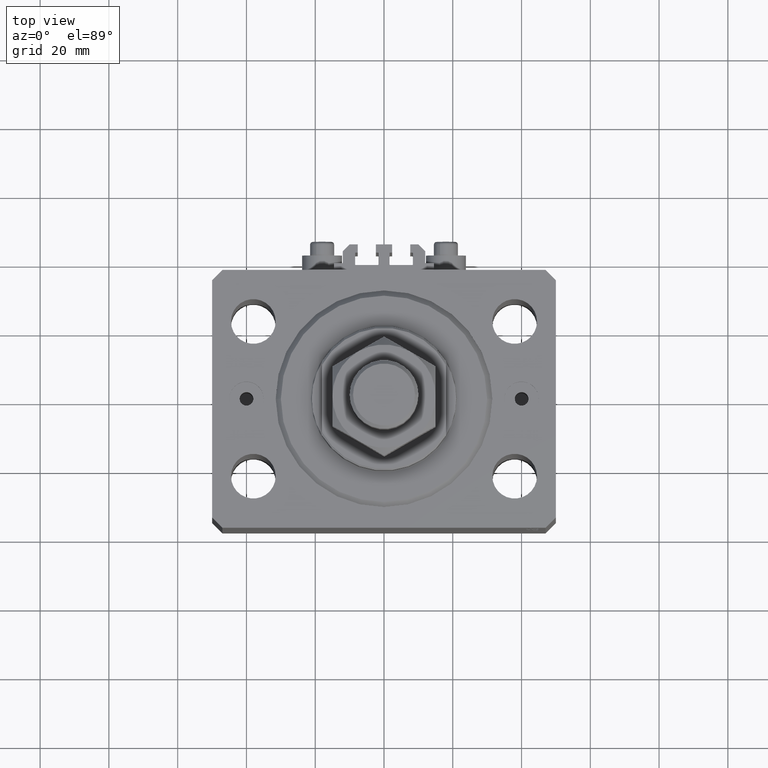
[diagram: clean part render]
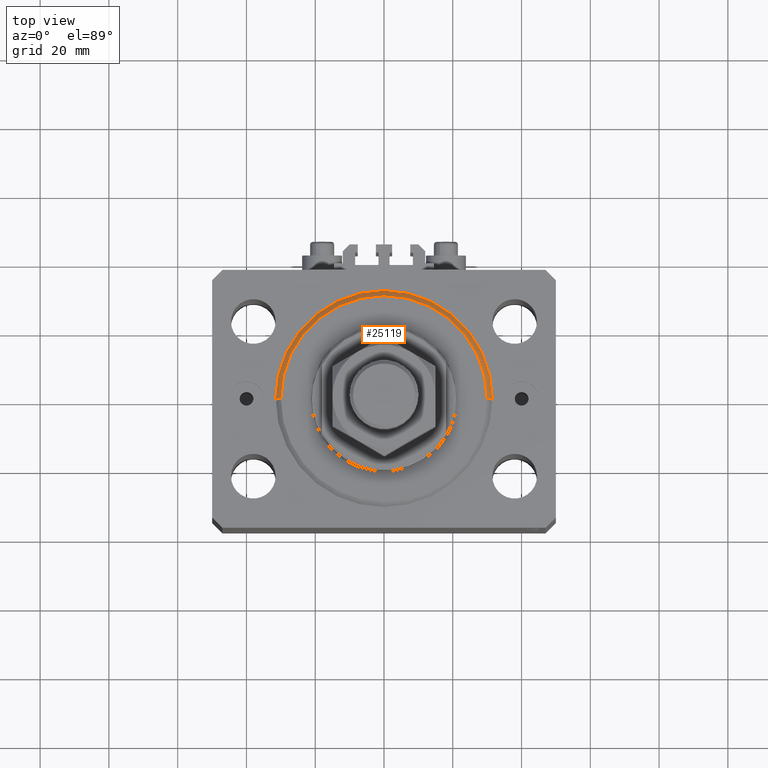
[diagram: same view with one face highlighted and labeled with its STEP entity id]
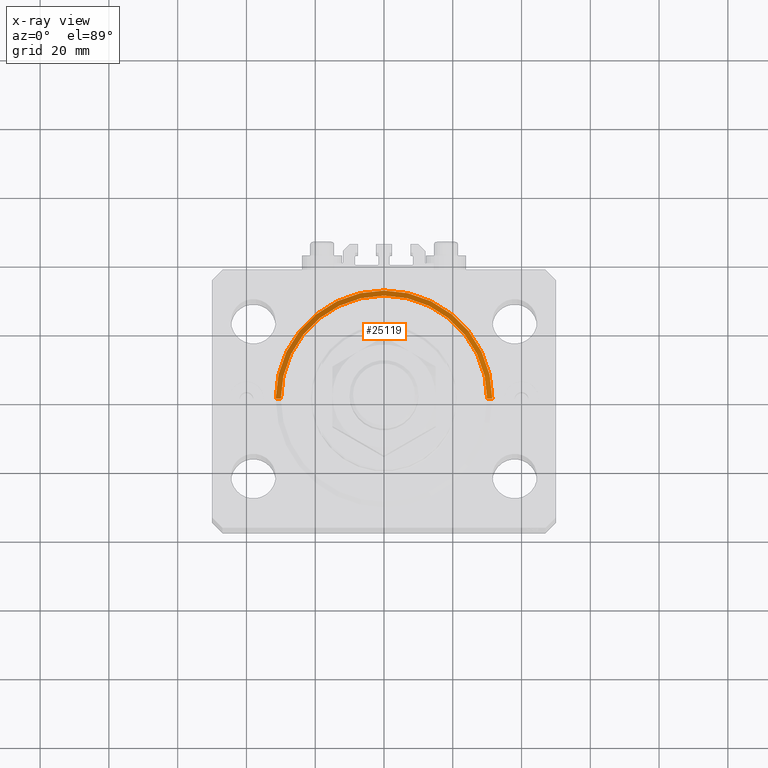
[diagram: x-ray of the same camera — body ghosted, the highlighted face saturated]
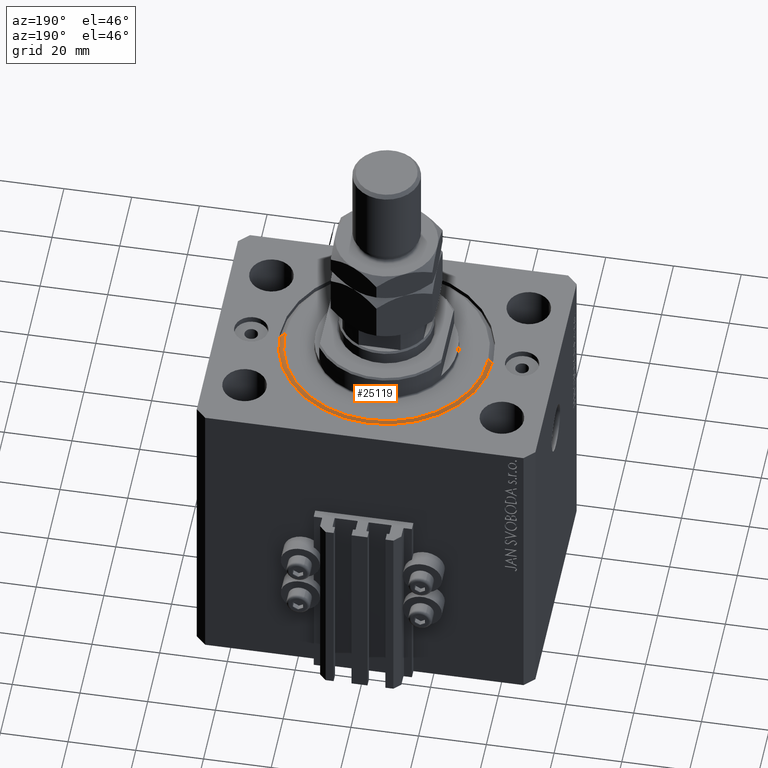
[diagram: same view with one face highlighted and labeled with its STEP entity id]
A machine part, top view. The second image highlights one B-rep face of the part: STEP entity #25119.
The next image is the same camera in x-ray: the body ghosted, the highlighted face saturated — about 0% of this face is hidden behind the body in this view.
A second angle (auxiliary view) of the same face is appended — the face is thin or edge-on in the first view.
In plain terms, the highlighted conical surface has half-angle 45 deg.
Its self-contained STEP definition (entity closure, byte-faithful):
#197 = DIRECTION ( 'NONE',  ( 1.000000000000000000, 0.000000000000000000, 0.000000000000000000 ) ) ;
#1704 = CONICAL_SURFACE ( 'NONE', #29261, 31.50000000000000000, 0.7853981633974482790 ) ;
#3676 = AXIS2_PLACEMENT_3D ( 'NONE', #48521, #7027, #33454 ) ;
#4461 = LINE ( 'NONE', #19533, #31880 ) ;
#7027 = DIRECTION ( 'NONE',  ( -0.000000000000000000, -0.000000000000000000, -1.000000000000000000 ) ) ;
#8404 = DIRECTION ( 'NONE',  ( -0.7071067811865474617, 8.659560562354932858E-17, 0.7071067811865474617 ) ) ;
#8598 = ORIENTED_EDGE ( 'NONE', *, *, #25539, .F. ) ;
#9979 = CIRCLE ( 'NONE', #3676, 30.00000000000002132 ) ;
#10364 = VERTEX_POINT ( 'NONE', #19359 ) ;
#11058 = FACE_OUTER_BOUND ( 'NONE', #14922, .T. ) ;
#11490 = DIRECTION ( 'NONE',  ( 0.7071067811865474617, 0.000000000000000000, 0.7071067811865474617 ) ) ;
#11707 = CARTESIAN_POINT ( 'NONE',  ( 0.000000000000000000, 0.000000000000000000, 1.499999999999980460 ) ) ;
#11979 = LINE ( 'NONE', #27046, #15134 ) ;
#14245 = VERTEX_POINT ( 'NONE', #28384 ) ;
#14911 = DIRECTION ( 'NONE',  ( 1.000000000000000000, 0.000000000000000000, 0.000000000000000000 ) ) ;
#14922 = EDGE_LOOP ( 'NONE', ( #24737, #21396, #22470, #8598 ) ) ;
#15134 = VECTOR ( 'NONE', #11490, 1000.000000000000114 ) ;
#16424 = CARTESIAN_POINT ( 'NONE',  ( 31.50000000000000000, 3.857637417314162689E-15, 1.499999999999980460 ) ) ;
#19238 = EDGE_CURVE ( 'NONE', #44318, #10364, #30699, .T. ) ;
#19359 = CARTESIAN_POINT ( 'NONE',  ( -31.50000000000000000, 0.000000000000000000, 1.499999999999980460 ) ) ;
#19533 = CARTESIAN_POINT ( 'NONE',  ( -31.50000000000000000, 3.857637417314162689E-15, 1.499999999999980460 ) ) ;
#21396 = ORIENTED_EDGE ( 'NONE', *, *, #36174, .T. ) ;
#21863 = CARTESIAN_POINT ( 'NONE',  ( -30.00000000000002132, 3.765788907378112117E-15, 0.000000000000000000 ) ) ;
#22470 = ORIENTED_EDGE ( 'NONE', *, *, #19238, .F. ) ;
#24737 = ORIENTED_EDGE ( 'NONE', *, *, #44197, .F. ) ;
#25119 = ADVANCED_FACE ( 'NONE', ( #11058 ), #1704, .T. ) ;
#25387 = VERTEX_POINT ( 'NONE', #21863 ) ;
#25539 = EDGE_CURVE ( 'NONE', #14245, #44318, #11979, .T. ) ;
#26117 = DIRECTION ( 'NONE',  ( -0.000000000000000000, -0.000000000000000000, 1.000000000000000000 ) ) ;
#27046 = CARTESIAN_POINT ( 'NONE',  ( 31.50000000000000000, 0.000000000000000000, 1.499999999999980460 ) ) ;
#28384 = CARTESIAN_POINT ( 'NONE',  ( 30.00000000000002132, 0.000000000000000000, 0.000000000000000000 ) ) ;
#29261 = AXIS2_PLACEMENT_3D ( 'NONE', #30066, #26117, #197 ) ;
#29734 = DIRECTION ( 'NONE',  ( -0.000000000000000000, -0.000000000000000000, 1.000000000000000000 ) ) ;
#30066 = CARTESIAN_POINT ( 'NONE',  ( 0.000000000000000000, 0.000000000000000000, 1.499999999999980460 ) ) ;
#30699 = CIRCLE ( 'NONE', #33027, 31.50000000000000000 ) ;
#31880 = VECTOR ( 'NONE', #8404, 1000.000000000000114 ) ;
#33027 = AXIS2_PLACEMENT_3D ( 'NONE', #11707, #29734, #14911 ) ;
#33454 = DIRECTION ( 'NONE',  ( 1.000000000000000000, 0.000000000000000000, 0.000000000000000000 ) ) ;
#36174 = EDGE_CURVE ( 'NONE', #25387, #10364, #4461, .T. ) ;
#44197 = EDGE_CURVE ( 'NONE', #25387, #14245, #9979, .T. ) ;
#44318 = VERTEX_POINT ( 'NONE', #16424 ) ;
#48521 = CARTESIAN_POINT ( 'NONE',  ( 0.000000000000000000, 0.000000000000000000, 0.000000000000000000 ) ) ;